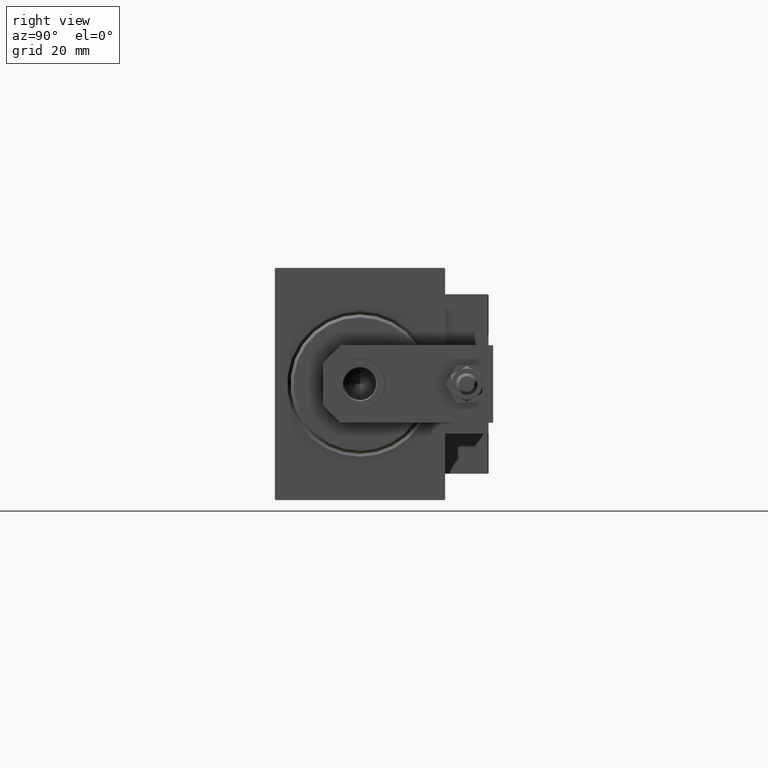
[diagram: clean part render]
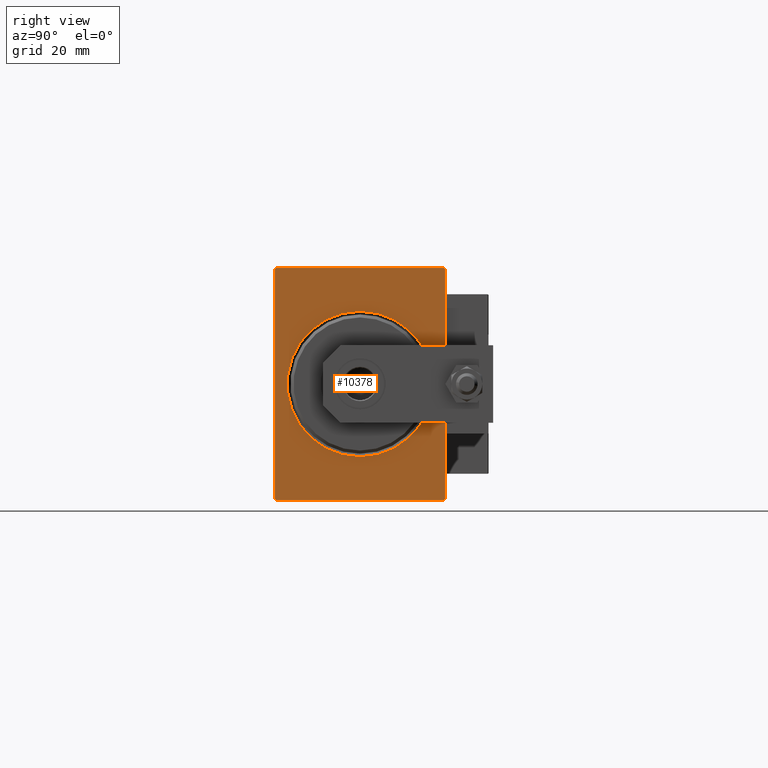
[diagram: same view with one face highlighted and labeled with its STEP entity id]
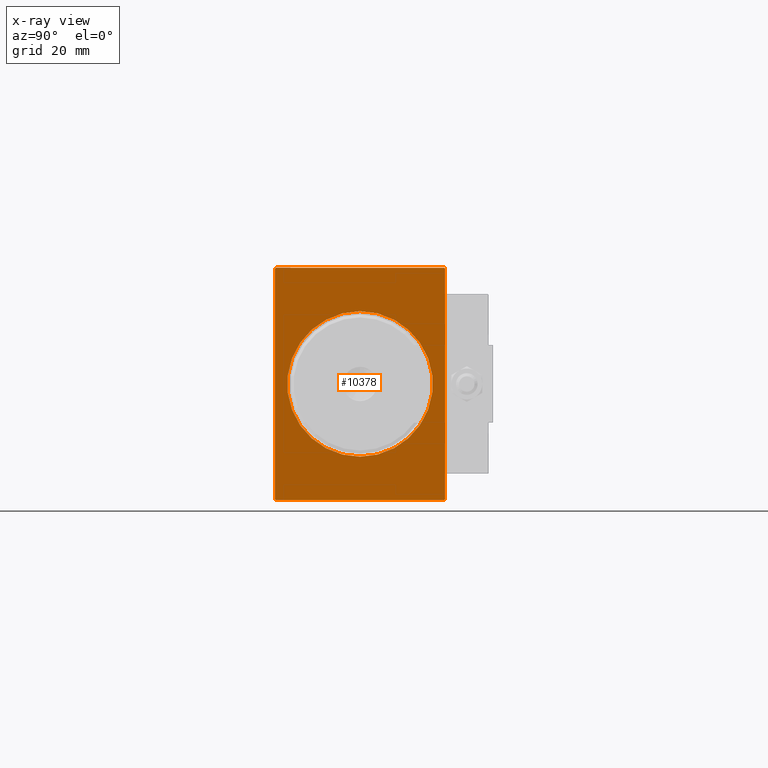
[diagram: x-ray of the same camera — body ghosted, the highlighted face saturated]
A machine part, right view. The second image highlights one B-rep face of the part: STEP entity #10378.
The next image is the same camera in x-ray: the body ghosted, the highlighted face saturated — about 0% of this face is hidden behind the body in this view.
In plain terms, the highlighted planar face has unit normal (-1, 0, 0).
Its self-contained STEP definition (entity closure, byte-faithful):
#692 = DIRECTION ( 'NONE',  ( 0.000000000000000000, 0.000000000000000000, -1.000000000000000000 ) ) ;
#1171 = CARTESIAN_POINT ( 'NONE',  ( 0.000000000000000000, 0.000000000000000000, 23.50000000000003197 ) ) ;
#2244 = FACE_BOUND ( 'NONE', #23006, .T. ) ;
#2496 = PLANE ( 'NONE',  #26664 ) ;
#3684 = LINE ( 'NONE', #19056, #32364 ) ;
#4480 = DIRECTION ( 'NONE',  ( -0.000000000000000000, 0.7071067811865352493, 0.7071067811865597852 ) ) ;
#5073 = CARTESIAN_POINT ( 'NONE',  ( 0.000000000000000000, 0.000000000000000000, 0.000000000000000000 ) ) ;
#5546 = CARTESIAN_POINT ( 'NONE',  ( 0.000000000000000000, 0.000000000000000000, 0.000000000000000000 ) ) ;
#6121 = ORIENTED_EDGE ( 'NONE', *, *, #45918, .F. ) ;
#6126 = CARTESIAN_POINT ( 'NONE',  ( 0.000000000000000000, 27.49999999999999645, 37.50000000000000711 ) ) ;
#6378 = VECTOR ( 'NONE', #36866, 1000.000000000000000 ) ;
#6415 = ORIENTED_EDGE ( 'NONE', *, *, #20501, .T. ) ;
#6978 = CARTESIAN_POINT ( 'NONE',  ( 0.000000000000000000, 27.20000000000001350, -37.50000000000000711 ) ) ;
#7609 = CIRCLE ( 'NONE', #10008, 23.50000000000003197 ) ;
#7932 = CARTESIAN_POINT ( 'NONE',  ( 0.000000000000000000, 27.20000000000001705, 37.50000000000000711 ) ) ;
#8076 = EDGE_CURVE ( 'NONE', #22070, #19497, #32931, .T. ) ;
#8273 = LINE ( 'NONE', #38998, #25834 ) ;
#8343 = VERTEX_POINT ( 'NONE', #38158 ) ;
#8452 = VERTEX_POINT ( 'NONE', #7932 ) ;
#9596 = DIRECTION ( 'NONE',  ( 1.000000000000000000, 0.000000000000000000, 0.000000000000000000 ) ) ;
#10008 = AXIS2_PLACEMENT_3D ( 'NONE', #35457, #24378, #692 ) ;
#10378 = ADVANCED_FACE ( 'NONE', ( #2244, #31982 ), #2496, .F. ) ;
#10634 = EDGE_CURVE ( 'NONE', #22070, #21912, #8273, .T. ) ;
#11685 = ORIENTED_EDGE ( 'NONE', *, *, #10634, .T. ) ;
#11702 = EDGE_CURVE ( 'NONE', #8452, #47311, #3684, .T. ) ;
#12302 = VERTEX_POINT ( 'NONE', #19182 ) ;
#12934 = VERTEX_POINT ( 'NONE', #14734 ) ;
#13097 = LINE ( 'NONE', #20914, #48070 ) ;
#13800 = DIRECTION ( 'NONE',  ( 0.000000000000000000, 0.000000000000000000, -1.000000000000000000 ) ) ;
#14072 = CARTESIAN_POINT ( 'NONE',  ( 0.000000000000000000, -27.50000000000000000, -37.50000000000000711 ) ) ;
#14245 = CARTESIAN_POINT ( 'NONE',  ( 0.000000000000000000, -27.19999999999997797, -37.50000000000000711 ) ) ;
#14734 = CARTESIAN_POINT ( 'NONE',  ( 0.000000000000000000, -27.19999999999997797, -37.50000000000000711 ) ) ;
#14823 = DIRECTION ( 'NONE',  ( 0.000000000000000000, 1.000000000000000000, 0.000000000000000000 ) ) ;
#15519 = CARTESIAN_POINT ( 'NONE',  ( 0.000000000000000000, 27.49999999999999645, 37.20000000000002416 ) ) ;
#15793 = EDGE_CURVE ( 'NONE', #8343, #44263, #40658, .T. ) ;
#16714 = ORIENTED_EDGE ( 'NONE', *, *, #8076, .F. ) ;
#17612 = DIRECTION ( 'NONE',  ( 0.000000000000000000, 0.000000000000000000, -1.000000000000000000 ) ) ;
#19056 = CARTESIAN_POINT ( 'NONE',  ( 0.000000000000000000, 27.20000000000001705, 37.50000000000000711 ) ) ;
#19182 = CARTESIAN_POINT ( 'NONE',  ( 0.000000000000000000, 27.50000000000000355, -37.19999999999999574 ) ) ;
#19497 = VERTEX_POINT ( 'NONE', #47855 ) ;
#19575 = ORIENTED_EDGE ( 'NONE', *, *, #33713, .T. ) ;
#20442 = DIRECTION ( 'NONE',  ( 0.000000000000000000, 0.000000000000000000, -1.000000000000000000 ) ) ;
#20501 = EDGE_CURVE ( 'NONE', #12302, #36520, #28680, .T. ) ;
#20914 = CARTESIAN_POINT ( 'NONE',  ( 0.000000000000000000, 27.50000000000000355, -37.50000000000000711 ) ) ;
#21912 = VERTEX_POINT ( 'NONE', #42772 ) ;
#22070 = VERTEX_POINT ( 'NONE', #44499 ) ;
#22763 = ORIENTED_EDGE ( 'NONE', *, *, #48847, .F. ) ;
#23006 = EDGE_LOOP ( 'NONE', ( #34598, #47964 ) ) ;
#23908 = EDGE_CURVE ( 'NONE', #8452, #21912, #25265, .T. ) ;
#23923 = CARTESIAN_POINT ( 'NONE',  ( 0.000000000000000000, 27.50000000000000355, -37.19999999999999574 ) ) ;
#24378 = DIRECTION ( 'NONE',  ( 1.000000000000000000, 0.000000000000000000, 0.000000000000000000 ) ) ;
#25265 = LINE ( 'NONE', #6126, #6378 ) ;
#25834 = VECTOR ( 'NONE', #4480, 1000.000000000000000 ) ;
#26664 = AXIS2_PLACEMENT_3D ( 'NONE', #5546, #43802, #17612 ) ;
#28462 = DIRECTION ( 'NONE',  ( 0.000000000000000000, -9.251858538542970348E-17, 1.000000000000000000 ) ) ;
#28589 = AXIS2_PLACEMENT_3D ( 'NONE', #5073, #9596, #20442 ) ;
#28680 = LINE ( 'NONE', #23923, #28734 ) ;
#28734 = VECTOR ( 'NONE', #43545, 1000.000000000000114 ) ;
#31982 = FACE_OUTER_BOUND ( 'NONE', #41602, .T. ) ;
#32364 = VECTOR ( 'NONE', #41222, 1000.000000000000114 ) ;
#32882 = EDGE_CURVE ( 'NONE', #44263, #8343, #7609, .T. ) ;
#32931 = LINE ( 'NONE', #48274, #35430 ) ;
#32964 = LINE ( 'NONE', #14072, #34379 ) ;
#33713 = EDGE_CURVE ( 'NONE', #12934, #19497, #37680, .T. ) ;
#34379 = VECTOR ( 'NONE', #14823, 1000.000000000000000 ) ;
#34598 = ORIENTED_EDGE ( 'NONE', *, *, #32882, .T. ) ;
#35430 = VECTOR ( 'NONE', #13800, 1000.000000000000000 ) ;
#35457 = CARTESIAN_POINT ( 'NONE',  ( 0.000000000000000000, 0.000000000000000000, 0.000000000000000000 ) ) ;
#36520 = VERTEX_POINT ( 'NONE', #6978 ) ;
#36866 = DIRECTION ( 'NONE',  ( 0.000000000000000000, -1.000000000000000000, -2.523234146875355998E-16 ) ) ;
#37680 = LINE ( 'NONE', #14245, #47842 ) ;
#38158 = CARTESIAN_POINT ( 'NONE',  ( 0.000000000000000000, 2.877919977996283870E-15, -23.50000000000003197 ) ) ;
#38998 = CARTESIAN_POINT ( 'NONE',  ( 0.000000000000000000, -27.50000000000000000, 37.19999999999998153 ) ) ;
#40658 = CIRCLE ( 'NONE', #28589, 23.50000000000003197 ) ;
#41157 = ORIENTED_EDGE ( 'NONE', *, *, #11702, .T. ) ;
#41222 = DIRECTION ( 'NONE',  ( -0.000000000000000000, 0.7071067811865474617, -0.7071067811865474617 ) ) ;
#41602 = EDGE_LOOP ( 'NONE', ( #43679, #41157, #6121, #6415, #22763, #19575, #16714, #11685 ) ) ;
#42772 = CARTESIAN_POINT ( 'NONE',  ( 0.000000000000000000, -27.20000000000000284, 37.49999999999999289 ) ) ;
#43545 = DIRECTION ( 'NONE',  ( 0.000000000000000000, -0.7071067811865271446, -0.7071067811865678898 ) ) ;
#43679 = ORIENTED_EDGE ( 'NONE', *, *, #23908, .F. ) ;
#43802 = DIRECTION ( 'NONE',  ( 1.000000000000000000, 0.000000000000000000, 0.000000000000000000 ) ) ;
#44263 = VERTEX_POINT ( 'NONE', #1171 ) ;
#44499 = CARTESIAN_POINT ( 'NONE',  ( 0.000000000000000000, -27.50000000000000000, 37.19999999999998153 ) ) ;
#44708 = DIRECTION ( 'NONE',  ( -0.000000000000000000, -0.7071067811865638930, 0.7071067811865312525 ) ) ;
#45918 = EDGE_CURVE ( 'NONE', #12302, #47311, #13097, .T. ) ;
#47311 = VERTEX_POINT ( 'NONE', #15519 ) ;
#47842 = VECTOR ( 'NONE', #44708, 1000.000000000000114 ) ;
#47855 = CARTESIAN_POINT ( 'NONE',  ( 0.000000000000000000, -27.50000000000000000, -37.19999999999999574 ) ) ;
#47964 = ORIENTED_EDGE ( 'NONE', *, *, #15793, .T. ) ;
#48070 = VECTOR ( 'NONE', #28462, 1000.000000000000000 ) ;
#48274 = CARTESIAN_POINT ( 'NONE',  ( 0.000000000000000000, -27.50000000000000000, 37.49999999999999289 ) ) ;
#48847 = EDGE_CURVE ( 'NONE', #12934, #36520, #32964, .T. ) ;